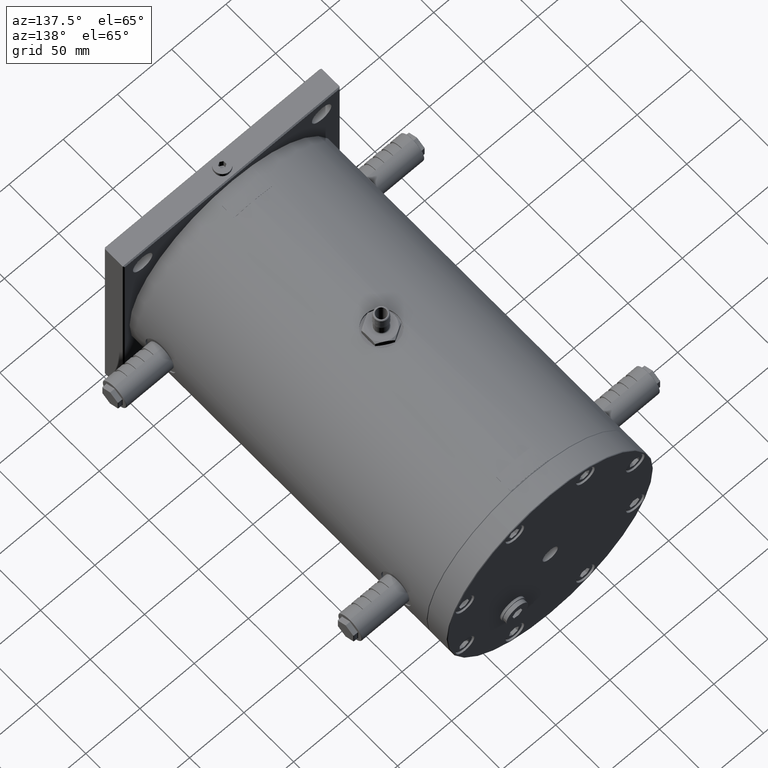
[diagram: clean part render]
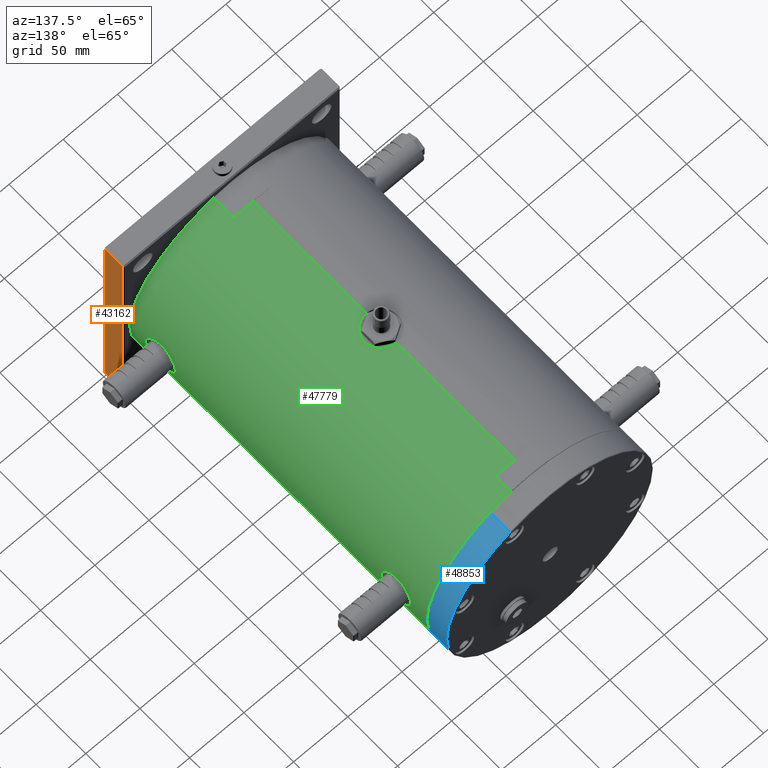
[diagram: same view with three faces highlighted in distinct colors, each labeled with its STEP entity id]
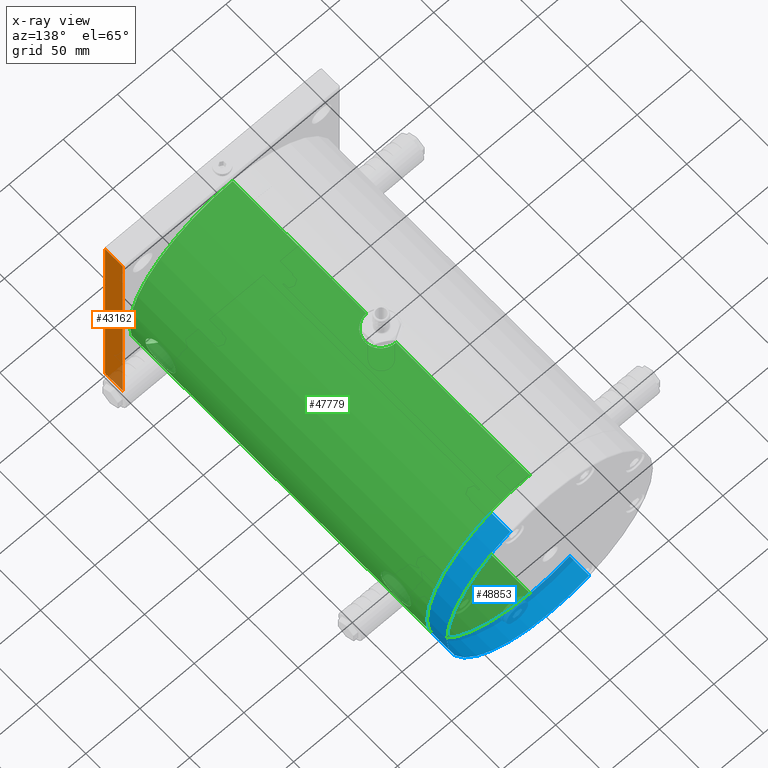
[diagram: x-ray of the same camera — body ghosted, the three highlighted faces saturated]
A machine part, auxiliary view with three faces highlighted in distinct colors.
The next image is the same camera in x-ray (body ghosted, the three faces saturated) — at least one of them is partly hidden behind the body in this view.
Their STEP definitions:

[orange] entity #43162 — the highlighted planar face has unit normal (-1, -0, 0).
#26 = VERTEX_POINT ( 'NONE', #16512 ) ;
#2985 = LINE ( 'NONE', #25961, #27165 ) ;
#4326 = PLANE ( 'NONE',  #44457 ) ;
#5068 = LINE ( 'NONE', #39673, #45873 ) ;
#11075 = CARTESIAN_POINT ( 'NONE',  ( 100.0000000000000000, 19.00000000000000000, 100.0000000000000000 ) ) ;
#11875 = EDGE_LOOP ( 'NONE', ( #25323, #30259, #40073, #50368 ) ) ;
#12211 = CARTESIAN_POINT ( 'NONE',  ( 100.0000000000000000, 1.000000000000000000, 100.0000000000000000 ) ) ;
#16512 = CARTESIAN_POINT ( 'NONE',  ( 100.0000000000000000, 1.000000000000000000, -100.0000000000000000 ) ) ;
#18087 = LINE ( 'NONE', #44502, #34114 ) ;
#21166 = DIRECTION ( 'NONE',  ( 1.491862189340053900E-016, -6.234162491791649300E-017, 1.000000000000000000 ) ) ;
#23513 = CARTESIAN_POINT ( 'NONE',  ( 100.0000000000000000, 20.00000000000000000, 100.0000000000000000 ) ) ;
#25323 = ORIENTED_EDGE ( 'NONE', *, *, #49682, .T. ) ;
#25666 = LINE ( 'NONE', #33217, #26948 ) ;
#25961 = CARTESIAN_POINT ( 'NONE',  ( 100.0000000000000000, 20.00000000000000000, 100.0000000000000000 ) ) ;
#26368 = EDGE_CURVE ( 'NONE', #29666, #26, #5068, .T. ) ;
#26653 = DIRECTION ( 'NONE',  ( 2.300880297921579900E-017, -1.000000000000000000, 0.0000000000000000000 ) ) ;
#26948 = VECTOR ( 'NONE', #49172, 1000.000000000000000 ) ;
#27165 = VECTOR ( 'NONE', #26653, 1000.000000000000000 ) ;
#28270 = CARTESIAN_POINT ( 'NONE',  ( 100.0000000000000000, 19.00000000000000000, -100.0000000000000000 ) ) ;
#29666 = VERTEX_POINT ( 'NONE', #28270 ) ;
#30259 = ORIENTED_EDGE ( 'NONE', *, *, #44140, .T. ) ;
#31590 = DIRECTION ( 'NONE',  ( -1.000000000000000000, -8.946783215029165300E-019, 1.491862189340053900E-016 ) ) ;
#31935 = DIRECTION ( 'NONE',  ( 1.491862189340053900E-016, -6.234162491791649300E-017, 1.000000000000000000 ) ) ;
#33217 = CARTESIAN_POINT ( 'NONE',  ( 100.0000000000000000, 1.000000000000000000, 100.0000000000000000 ) ) ;
#34114 = VECTOR ( 'NONE', #21166, 1000.000000000000000 ) ;
#36364 = VERTEX_POINT ( 'NONE', #11075 ) ;
#38591 = VERTEX_POINT ( 'NONE', #12211 ) ;
#39673 = CARTESIAN_POINT ( 'NONE',  ( 100.0000000000000000, 20.00000000000000000, -100.0000000000000000 ) ) ;
#40073 = ORIENTED_EDGE ( 'NONE', *, *, #26368, .F. ) ;
#42426 = EDGE_CURVE ( 'NONE', #29666, #36364, #18087, .T. ) ;
#43162 = ADVANCED_FACE ( 'NONE', ( #50208 ), #4326, .F. ) ;
#44140 = EDGE_CURVE ( 'NONE', #38591, #26, #25666, .T. ) ;
#44457 = AXIS2_PLACEMENT_3D ( 'NONE', #23513, #31590, #31935 ) ;
#44502 = CARTESIAN_POINT ( 'NONE',  ( 100.0000000000000000, 19.00000000000000000, 100.0000000000000000 ) ) ;
#45873 = VECTOR ( 'NONE', #51114, 1000.000000000000000 ) ;
#49172 = DIRECTION ( 'NONE',  ( -1.491862189340053900E-016, 6.234162491791649300E-017, -1.000000000000000000 ) ) ;
#49682 = EDGE_CURVE ( 'NONE', #36364, #38591, #2985, .T. ) ;
#50208 = FACE_OUTER_BOUND ( 'NONE', #11875, .T. ) ;
#50368 = ORIENTED_EDGE ( 'NONE', *, *, #42426, .T. ) ;
#51114 = DIRECTION ( 'NONE',  ( 2.300880297921579900E-017, -1.000000000000000000, 0.0000000000000000000 ) ) ;

[blue] entity #48853 — the highlighted cylindrical surface (partial cylindrical patch) has radius 95 mm, axis along (0, -1, -0).
#3123 = AXIS2_PLACEMENT_3D ( 'NONE', #10956, #7312, #27211 ) ;
#3277 = CIRCLE ( 'NONE', #43000, 94.99999999999998600 ) ;
#6094 = CIRCLE ( 'NONE', #3123, 94.99999999999998600 ) ;
#7202 = DIRECTION ( 'NONE',  ( -1.955725044488215100E-015, 1.000000000000000000, 2.661534413424140000E-015 ) ) ;
#7312 = DIRECTION ( 'NONE',  ( 1.955725044488215100E-015, -1.000000000000000000, -2.661534413424140000E-015 ) ) ;
#8647 = CARTESIAN_POINT ( 'NONE',  ( 36.35492607475062200, 339.4999999999998300, 87.76855558854499900 ) ) ;
#9865 = AXIS2_PLACEMENT_3D ( 'NONE', #37032, #48981, #28440 ) ;
#10956 = CARTESIAN_POINT ( 'NONE',  ( -7.459025499431389500E-013, 339.5000000000000000, 8.782341766847179800E-013 ) ) ;
#11834 = VERTEX_POINT ( 'NONE', #38336 ) ;
#12149 = VECTOR ( 'NONE', #22024, 1000.000000000000000 ) ;
#14230 = CARTESIAN_POINT ( 'NONE',  ( 36.35492607475058700, 339.9999999999998900, 87.76855558854501300 ) ) ;
#14641 = VERTEX_POINT ( 'NONE', #34073 ) ;
#15453 = DIRECTION ( 'NONE',  ( 1.955725044488215100E-015, -1.000000000000000000, -2.661534413424140000E-015 ) ) ;
#15792 = CARTESIAN_POINT ( 'NONE',  ( -36.35492607475207900, 340.0000000000001700, -87.76855558854326500 ) ) ;
#17261 = ORIENTED_EDGE ( 'NONE', *, *, #45981, .T. ) ;
#17335 = EDGE_LOOP ( 'NONE', ( #50236, #17261, #39234, #22298 ) ) ;
#18597 = DIRECTION ( 'NONE',  ( 0.3826834323658035400, -1.752983723092352800E-015, 0.9238795325109912000 ) ) ;
#22024 = DIRECTION ( 'NONE',  ( 1.955725044488215100E-015, -1.000000000000000000, -2.661534413424140000E-015 ) ) ;
#22298 = ORIENTED_EDGE ( 'NONE', *, *, #49446, .F. ) ;
#24655 = LINE ( 'NONE', #15792, #36398 ) ;
#24730 = EDGE_CURVE ( 'NONE', #14641, #40261, #3277, .T. ) ;
#27211 = DIRECTION ( 'NONE',  ( 0.3826834323658035400, -1.752983723092352800E-015, 0.9238795325109912000 ) ) ;
#27829 = FACE_OUTER_BOUND ( 'NONE', #17335, .T. ) ;
#28440 = DIRECTION ( 'NONE',  ( -0.3826834323658035400, 1.752983723092352800E-015, -0.9238795325109912000 ) ) ;
#30390 = CARTESIAN_POINT ( 'NONE',  ( -36.35492607475206500, 320.0000000000001700, -87.76855558854330800 ) ) ;
#30835 = CARTESIAN_POINT ( 'NONE',  ( -7.077659115756189900E-013, 320.0000000000000000, 8.263342556229470200E-013 ) ) ;
#34060 = VERTEX_POINT ( 'NONE', #8647 ) ;
#34073 = CARTESIAN_POINT ( 'NONE',  ( 36.35492607475061500, 319.9999999999998300, 87.76855558854498400 ) ) ;
#36398 = VECTOR ( 'NONE', #15453, 1000.000000000000000 ) ;
#37032 = CARTESIAN_POINT ( 'NONE',  ( -7.468804124653830000E-013, 340.0000000000000000, 8.795649438914299800E-013 ) ) ;
#38336 = CARTESIAN_POINT ( 'NONE',  ( -36.35492607475205800, 339.5000000000001700, -87.76855558854327900 ) ) ;
#39234 = ORIENTED_EDGE ( 'NONE', *, *, #24730, .T. ) ;
#40261 = VERTEX_POINT ( 'NONE', #30390 ) ;
#41176 = LINE ( 'NONE', #14230, #12149 ) ;
#43000 = AXIS2_PLACEMENT_3D ( 'NONE', #30835, #7202, #18597 ) ;
#44770 = EDGE_CURVE ( 'NONE', #11834, #34060, #6094, .T. ) ;
#45981 = EDGE_CURVE ( 'NONE', #34060, #14641, #41176, .T. ) ;
#47597 = CYLINDRICAL_SURFACE ( 'NONE', #9865, 94.99999999999998600 ) ;
#48853 = ADVANCED_FACE ( 'NONE', ( #27829 ), #47597, .T. ) ;
#48981 = DIRECTION ( 'NONE',  ( 1.955725044488215100E-015, -1.000000000000000000, -2.661534413424140000E-015 ) ) ;
#49446 = EDGE_CURVE ( 'NONE', #11834, #40261, #24655, .T. ) ;
#50236 = ORIENTED_EDGE ( 'NONE', *, *, #44770, .T. ) ;

[green] entity #47779 — the highlighted cylindrical surface (partial cylindrical patch) has radius 95 mm, axis along (0, -1, 0).
#509 = CARTESIAN_POINT ( 'NONE',  ( 94.01169574294213800, 45.30289921502257000, 13.66884056311762100 ) ) ;
#1043 = EDGE_CURVE ( 'NONE', #13489, #9054, #40050, .T. ) ;
#1736 = CARTESIAN_POINT ( 'NONE',  ( 0.0000000000000000000, 319.5000000000000000, 0.0000000000000000000 ) ) ;
#1748 = VERTEX_POINT ( 'NONE', #45569 ) ;
#2100 = CARTESIAN_POINT ( 'NONE',  ( 93.93124831220708900, 283.6728524474844400, -14.21061395753144500 ) ) ;
#2456 = CARTESIAN_POINT ( 'NONE',  ( 94.21376205251530700, 279.7594274543406500, -12.20009916580405500 ) ) ;
#2556 = CARTESIAN_POINT ( 'NONE',  ( 93.80831519646857000, 52.47952891109894600, 14.99999999999996600 ) ) ;
#2725 = FACE_OUTER_BOUND ( 'NONE', #51117, .T. ) ;
#2771 = CARTESIAN_POINT ( 'NONE',  ( 14.90237131168876600, 168.0309195021228300, 93.82407341456206500 ) ) ;
#2860 = CARTESIAN_POINT ( 'NONE',  ( 94.32759826050448700, 298.4079888304420400, 11.30431237425611500 ) ) ;
#2899 = CARTESIAN_POINT ( 'NONE',  ( 93.88775553143170800, 55.38981930322481200, 14.49517789102654700 ) ) ;
#2900 = CARTESIAN_POINT ( 'NONE',  ( 94.36748313137685800, 41.23649170612783600, -10.94983873391603300 ) ) ;
#2964 = CARTESIAN_POINT ( 'NONE',  ( 95.00002888294113700, 273.4998170746932300, 0.4844051046419959300 ) ) ;
#3196 = CARTESIAN_POINT ( 'NONE',  ( 93.88853434243830500, 292.4086399488543900, -14.49014124802632300 ) ) ;
#3239 = CARTESIAN_POINT ( 'NONE',  ( 94.59881055778811300, 63.70687035996874700, -8.731133722901361700 ) ) ;
#3370 = CARTESIAN_POINT ( 'NONE',  ( 94.44560342858160600, 299.4585341279672500, -10.25420786198594800 ) ) ;
#3408 = CARTESIAN_POINT ( 'NONE',  ( 94.04291593617848800, 58.15246988096735900, -13.45304885120810900 ) ) ;
#3449 = CARTESIAN_POINT ( 'NONE',  ( 95.00002888294116600, 36.49981707469339700, 0.4844051046419872700 ) ) ;
#3550 = CARTESIAN_POINT ( 'NONE',  ( 93.80831519646859800, 289.4795289110990100, 15.00000000000000000 ) ) ;
#3583 = CARTESIAN_POINT ( 'NONE',  ( 94.77159016678152200, 64.98304233937551500, -6.646186053362740200 ) ) ;
#3613 = B_SPLINE_CURVE_WITH_KNOTS ( 'NONE', 3,
 ( #22073, #2556, #10515, #26588, #2899, #33635, #9997, #37616, #13940, #17939, #11038, #26764, #19291, #35197, #38824, #27121, #15490, #6864, #30511, #18789, #19483, #7047, #46950, #46433, #23282, #50936, #50591, #34827, #38990, #42776, #38650, #31206, #27283, #3583, #14795, #3239, #7556, #18966, #34659, #7224, #11366, #30864, #22927, #3408, #22758, #15146, #14967, #43142, #11199, #42624, #26946, #11539 ),
 .UNSPECIFIED., .F., .F.,
 ( 4, 2, 2, 2, 2, 2, 2, 2, 2, 2, 2, 2, 2, 2, 2, 2, 2, 2, 2, 2, 2, 2, 2, 2, 2, 4 ),
 ( 0.04697029817418248200, 0.04990521492440493800, 0.05137267329951615600, 0.05284013167462737300, 0.05430759004973859100, 0.05577504842484980900, 0.05870996517507223700, 0.06017742355018344800, 0.06164488192529465200, 0.06457979867551705300, 0.06604725705062826400, 0.06751471542573946000, 0.06898217380085067100, 0.07044963217596186800, 0.07338454892618427600, 0.07485200730129547300, 0.07631946567640668400, 0.07925438242662907800, 0.08072184080174028800, 0.08218929917685149900, 0.08512421592707392100, 0.08659167430218511800, 0.08805913267729631500, 0.08952659105240751100, 0.09099404942751870800, 0.09392896617774114400 ),
 .UNSPECIFIED. ) ;
#3866 = CIRCLE ( 'NONE', #40879, 95.00000000000000000 ) ;
#3873 = CIRCLE ( 'NONE', #19807, 95.00000000000000000 ) ;
#3887 = B_SPLINE_CURVE_WITH_KNOTS ( 'NONE', 3,
 ( #33802, #18113, #10516, #34324, #10685, #41939, #18450, #46098, #22408, #22588, #9998, #14631, #2900, #13941, #17940, #5276, #41431, #49279, #25408, #30213, #14827, #35044, #42809, #19161, #35235, #3449, #15521, #31054, #38689, #22794, #15348, #42487, #46818, #46466, #48011, #27470, #31400, #27805, #7783, #8128, #43691, #8303, #39880, #16220, #509, #28150, #12911, #44200, #4644, #4973, #44372, #36922 ),
 .UNSPECIFIED., .F., .F.,
 ( 4, 2, 2, 2, 2, 2, 2, 2, 2, 2, 2, 2, 2, 2, 2, 2, 2, 2, 2, 2, 2, 2, 2, 2, 2, 4 ),
 ( 0.0000000000000000000, 0.002935643635886420300, 0.004403465453829628900, 0.005871287271772838800, 0.008806930907659240400, 0.01027475272560244100, 0.01174257454354564100, 0.01467821817943206500, 0.01614603999737527400, 0.01761386181531847700, 0.01908168363326168500, 0.02054950545120489200, 0.02348514908709130000, 0.02495297090503450000, 0.02642079272297770700, 0.02935643635886411500, 0.03082425817680731200, 0.03229207999475051200, 0.03375990181269371300, 0.03522772363063690600, 0.03816336726652330000, 0.03963118908446650000, 0.04109901090240970100, 0.04403465453829610200, 0.04550247635623929500, 0.04697029817418248200 ),
 .UNSPECIFIED. ) ;
#4329 = VERTEX_POINT ( 'NONE', #43769 ) ;
#4644 = CARTESIAN_POINT ( 'NONE',  ( 93.82761814880944900, 49.53421362597101300, 14.87886065367530500 ) ) ;
#4813 = VECTOR ( 'NONE', #12635, 1000.000000000000000 ) ;
#4837 = B_SPLINE_CURVE_WITH_KNOTS ( 'NONE', 3,
 ( #9769, #13691, #41356, #45343, #25120, #49340, #5953, #29440, #5771, #9260, #44829, #25640, #33552, #9929, #13194, #40998, #45000, #37542, #29107, #41527, #40838, #21503, #17200, #45519, #13873, #21156 ),
 .UNSPECIFIED., .F., .F.,
 ( 4, 2, 2, 2, 2, 2, 2, 2, 2, 2, 2, 2, 4 ),
 ( 0.07045895232035724600, 0.07339270405253024700, 0.07485957991861676200, 0.07632645578470326200, 0.07926020751687629100, 0.08072708338296280500, 0.08219395924904930600, 0.08512771098122227900, 0.08659458684730876600, 0.08806146271339525300, 0.08952833857948173900, 0.09099521444556822600, 0.09392896617774111600 ),
 .UNSPECIFIED. ) ;
#4973 = CARTESIAN_POINT ( 'NONE',  ( 93.81215264043336800, 50.51899458641033600, 14.97606219265641800 ) ) ;
#5201 = FACE_BOUND ( 'NONE', #29127, .T. ) ;
#5276 = CARTESIAN_POINT ( 'NONE',  ( 94.66937268861477200, 38.75778764119900900, -7.929638499274860300 ) ) ;
#5477 = CARTESIAN_POINT ( 'NONE',  ( 0.0000000000000000000, 20.50000000000000000, 0.0000000000000000000 ) ) ;
#5771 = CARTESIAN_POINT ( 'NONE',  ( 7.512849332740490400, 183.0199048040399000, 94.70600239149811700 ) ) ;
#5871 = DIRECTION ( 'NONE',  ( 0.0000000000000000000, 0.0000000000000000000, 1.000000000000000000 ) ) ;
#5909 = DIRECTION ( 'NONE',  ( 0.0000000000000000000, -1.000000000000000000, 0.0000000000000000000 ) ) ;
#5953 = CARTESIAN_POINT ( 'NONE',  ( 5.292104109825895200, 184.0440191453382100, 94.85357080435817100 ) ) ;
#6414 = CARTESIAN_POINT ( 'NONE',  ( 93.80831519646859800, 287.5072397086079800, -15.00000000000000400 ) ) ;
#6583 = CARTESIAN_POINT ( 'NONE',  ( 93.82406587339127700, 286.5313868584210000, -14.90241759614651900 ) ) ;
#6725 = CARTESIAN_POINT ( 'NONE',  ( 4.830869146935569300, 155.7907033897630800, 94.87825975397724700 ) ) ;
#6821 = CARTESIAN_POINT ( 'NONE',  ( 93.86962066749536900, 291.9263862499502700, -14.61177383230986500 ) ) ;
#6864 = CARTESIAN_POINT ( 'NONE',  ( 94.70494762989048400, 64.51221456983678600, 7.525902816628515300 ) ) ;
#6903 = CARTESIAN_POINT ( 'NONE',  ( 13.47684159604682100, 163.3410563925994000, 94.03999113813695500 ) ) ;
#6935 = CARTESIAN_POINT ( 'NONE',  ( 94.32755499132011300, 278.5919397803754700, 11.30516479866415700 ) ) ;
#7009 = CARTESIAN_POINT ( 'NONE',  ( 94.56001500819820600, 300.4035073954917200, 9.140623075693014200 ) ) ;
#7047 = CARTESIAN_POINT ( 'NONE',  ( 94.92138313664015900, 65.99444700877323600, 3.892698021094383300 ) ) ;
#7190 = CARTESIAN_POINT ( 'NONE',  ( 93.80831519646862700, 289.4925144770790600, -15.00000000000000500 ) ) ;
#7207 = VERTEX_POINT ( 'NONE', #25809 ) ;
#7224 = CARTESIAN_POINT ( 'NONE',  ( 94.32927271752036800, 61.42378679718522200, -11.29032559524117500 ) ) ;
#7284 = CARTESIAN_POINT ( 'NONE',  ( 94.48438925652162400, 277.2130741738603200, 9.891652883289189900 ) ) ;
#7349 = CARTESIAN_POINT ( 'NONE',  ( 94.14281545135511900, 296.4395587722386300, -12.73605687314769200 ) ) ;
#7455 = CARTESIAN_POINT ( 'NONE',  ( 94.99626690024329900, 273.5235845621766700, 0.9758713956846152300 ) ) ;
#7513 = CARTESIAN_POINT ( 'NONE',  ( 94.10670830719668300, 296.0006045169263300, 12.99930900640184100 ) ) ;
#7555 = LINE ( 'NONE', #21069, #48960 ) ;
#7556 = CARTESIAN_POINT ( 'NONE',  ( 94.56107564678468700, 63.41188797849943600, -9.129595024509134400 ) ) ;
#7783 = CARTESIAN_POINT ( 'NONE',  ( 94.44530702829615600, 40.54388178514302200, 10.25707442559737700 ) ) ;
#8128 = CARTESIAN_POINT ( 'NONE',  ( 94.32755499132014200, 41.59193978037552600, 11.30516479866414400 ) ) ;
#8303 = CARTESIAN_POINT ( 'NONE',  ( 94.14241316116158500, 43.56543316555349300, 12.73895744354714500 ) ) ;
#8451 = EDGE_CURVE ( 'NONE', #1748, #36960, #3887, .T. ) ;
#8540 = EDGE_CURVE ( 'NONE', #26540, #4329, #3866, .T. ) ;
#9054 = VERTEX_POINT ( 'NONE', #44658 ) ;
#9122 = B_SPLINE_CURVE_WITH_KNOTS ( 'NONE', 3,
 ( #10413, #6414, #6583, #38019, #25788, #2100, #22303, #49801, #10578, #2456, #38194, #10752, #18681, #33868, #21794, #49965, #49461, #29729, #33702, #21969, #10243, #14171, #41836, #15554, #39233, #2964, #7455, #23342, #42678, #30752, #34898, #30578, #22652, #11263, #22995, #35084, #26650, #7284, #35266, #6935, #23170, #34553, #38891, #50655, #27340, #19360, #31262, #15033, #39050, #11599, #43207, #19027 ),
 .UNSPECIFIED., .F., .F.,
 ( 4, 2, 2, 2, 2, 2, 2, 2, 2, 2, 2, 2, 2, 2, 2, 2, 2, 2, 2, 2, 2, 2, 2, 2, 2, 4 ),
 ( 0.0000000000000000000, 0.002935643635886357800, 0.004403465453829537800, 0.005871287271772718300, 0.008806930907659079100, 0.01027475272560225900, 0.01174257454354544000, 0.01467821817943180100, 0.01614603999737502700, 0.01761386181531825500, 0.01908168363326148700, 0.02054950545120471500, 0.02348514908709114000, 0.02495297090503434700, 0.02642079272297755800, 0.02935643635886395200, 0.03082425817680711400, 0.03229207999475027700, 0.03375990181269343500, 0.03522772363063660100, 0.03816336726652303600, 0.03963118908446625800, 0.04109901090240947900, 0.04403465453829592100, 0.04550247635623922600, 0.04697029817418253000 ),
 .UNSPECIFIED. ) ;
#9260 = CARTESIAN_POINT ( 'NONE',  ( 8.735737327896970300, 182.2035691454864500, 94.59838445690665800 ) ) ;
#9769 = CARTESIAN_POINT ( 'NONE',  ( 1.163414457908255300E-014, 185.0000000000000300, 95.00000000000000000 ) ) ;
#9929 = CARTESIAN_POINT ( 'NONE',  ( 11.29311847804811100, 179.9205690611584000, 94.32893473069285100 ) ) ;
#9997 = CARTESIAN_POINT ( 'NONE',  ( 93.95624073416571800, 56.78943491385681600, 14.04494733203603500 ) ) ;
#9998 = CARTESIAN_POINT ( 'NONE',  ( 94.25157263838188700, 42.36201207429997600, -11.90548420598179600 ) ) ;
#10243 = CARTESIAN_POINT ( 'NONE',  ( 94.87804411974559600, 274.2921422603482100, -4.835085709195988500 ) ) ;
#10389 = CARTESIAN_POINT ( 'NONE',  ( 5.291484044952593300, 155.9558251184243400, 94.85359568597323200 ) ) ;
#10413 = CARTESIAN_POINT ( 'NONE',  ( 93.80831519646859800, 288.5000000000000000, -15.00000000000000000 ) ) ;
#10515 = CARTESIAN_POINT ( 'NONE',  ( 93.82366184677013600, 53.45415914592869200, 14.90498301702929000 ) ) ;
#10516 = CARTESIAN_POINT ( 'NONE',  ( 93.82406587339127700, 49.53138685842099400, -14.90241759614655600 ) ) ;
#10578 = CARTESIAN_POINT ( 'NONE',  ( 94.10562595176298800, 280.9815274739498800, -13.01663102344745000 ) ) ;
#10685 = CARTESIAN_POINT ( 'NONE',  ( 93.88750099282266600, 47.61608616450845900, -14.49683123521211700 ) ) ;
#10725 = CARTESIAN_POINT ( 'NONE',  ( 1.954979101532151200, 155.0951756491896300, 94.98482829650237100 ) ) ;
#10752 = CARTESIAN_POINT ( 'NONE',  ( 94.32855466410670400, 278.5994897332793700, -11.27932949991627600 ) ) ;
#10827 = CARTESIAN_POINT ( 'NONE',  ( 94.32927271752036800, 298.4237867971853000, -11.29032559524112500 ) ) ;
#10910 = CARTESIAN_POINT ( 'NONE',  ( 10.94799757452910800, 159.7345224378019000, 94.36769728122575900 ) ) ;
#10994 = CARTESIAN_POINT ( 'NONE',  ( 94.85298871533645100, 302.5400983529164000, 5.302611873577141900 ) ) ;
#11038 = CARTESIAN_POINT ( 'NONE',  ( 94.14173571553070000, 59.42668987394013400, 12.74400509587701100 ) ) ;
#11199 = CARTESIAN_POINT ( 'NONE',  ( 93.86962066749536900, 54.92638624995029800, -14.61177383230989200 ) ) ;
#11263 = CARTESIAN_POINT ( 'NONE',  ( 94.70357379851969900, 275.5069365642212900, 7.511470866005177900 ) ) ;
#11323 = CARTESIAN_POINT ( 'NONE',  ( 94.98469697190215300, 303.4039594589446000, -1.956974520176091700 ) ) ;
#11366 = CARTESIAN_POINT ( 'NONE',  ( 94.25190144166802500, 60.66997791325511000, -11.91161020878176100 ) ) ;
#11539 = CARTESIAN_POINT ( 'NONE',  ( 93.80831519646859800, 51.50000000000000000, -15.00000000000000000 ) ) ;
#11599 = CARTESIAN_POINT ( 'NONE',  ( 93.81215264043335400, 287.5189945864100900, 14.97606219265643500 ) ) ;
#11940 = DIRECTION ( 'NONE',  ( 0.0000000000000000000, -1.000000000000000000, 0.0000000000000000000 ) ) ;
#12635 = DIRECTION ( 'NONE',  ( 0.0000000000000000000, -1.000000000000000000, 0.0000000000000000000 ) ) ;
#12911 = CARTESIAN_POINT ( 'NONE',  ( 93.88444751668328100, 47.59928355540248600, 14.51717612677281400 ) ) ;
#13194 = CARTESIAN_POINT ( 'NONE',  ( 11.91396397925626300, 179.1668813660500600, 94.25160163371614900 ) ) ;
#13489 = VERTEX_POINT ( 'NONE', #41263 ) ;
#13691 = CARTESIAN_POINT ( 'NONE',  ( 0.9906646551524677100, 185.0000000000000000, 95.00000000000000000 ) ) ;
#13873 = CARTESIAN_POINT ( 'NONE',  ( 14.99999999999999600, 170.9921204974950500, 93.80831519646859800 ) ) ;
#13940 = CARTESIAN_POINT ( 'NONE',  ( 94.04163289701433800, 58.13439806164424100, 13.46201564116260500 ) ) ;
#13941 = CARTESIAN_POINT ( 'NONE',  ( 94.48389310920482800, 40.20057625972086900, -9.913491127055921800 ) ) ;
#14171 = CARTESIAN_POINT ( 'NONE',  ( 94.92127614422634000, 274.0062554731269400, -3.895207947618801700 ) ) ;
#14494 = CARTESIAN_POINT ( 'NONE',  ( 3.890647883470890600, 155.5050261842476400, 94.92146400948962500 ) ) ;
#14590 = CARTESIAN_POINT ( 'NONE',  ( 94.99600449145587800, 303.4747512497082200, 0.9987172192352307100 ) ) ;
#14631 = CARTESIAN_POINT ( 'NONE',  ( 94.32855466410671900, 41.59948973327945500, -11.27932949991632200 ) ) ;
#14755 = CARTESIAN_POINT ( 'NONE',  ( 94.44409707085993900, 299.4455737080005000, 10.26807413454237800 ) ) ;
#14795 = CARTESIAN_POINT ( 'NONE',  ( 94.70643203664795400, 64.52302458184789200, -7.507486332299278000 ) ) ;
#14827 = CARTESIAN_POINT ( 'NONE',  ( 94.87804411974556700, 37.29214226034822100, -4.835085709196011500 ) ) ;
#14948 = CARTESIAN_POINT ( 'NONE',  ( 93.80831519646859800, 51.50000000000000000, 14.99999999999997000 ) ) ;
#14967 = CARTESIAN_POINT ( 'NONE',  ( 93.93238071392805500, 56.34899287119338900, -14.20313091443753700 ) ) ;
#15033 = CARTESIAN_POINT ( 'NONE',  ( 93.83923934543651100, 286.0435051908884200, 14.80562835958110300 ) ) ;
#15108 = CARTESIAN_POINT ( 'NONE',  ( 93.93135529095216900, 293.3290332652563300, 14.20990197106558900 ) ) ;
#15146 = CARTESIAN_POINT ( 'NONE',  ( 93.95736961739332600, 56.80940910178094300, -14.03740082913925700 ) ) ;
#15274 = CARTESIAN_POINT ( 'NONE',  ( 94.85394977208909500, 302.5465767844784200, -5.285332116630003800 ) ) ;
#15348 = CARTESIAN_POINT ( 'NONE',  ( 94.88145395093216900, 37.26521710600039900, 4.831052160519844200 ) ) ;
#15410 = CARTESIAN_POINT ( 'NONE',  ( 1.163414459189985600E-014, 320.0000000000000000, 95.00000000000000000 ) ) ;
#15490 = CARTESIAN_POINT ( 'NONE',  ( 94.59746841088085000, 63.69646200155580800, 8.745601748811072400 ) ) ;
#15521 = CARTESIAN_POINT ( 'NONE',  ( 94.99626690024331300, 36.52358456217673700, 0.9758713956846140100 ) ) ;
#15554 = CARTESIAN_POINT ( 'NONE',  ( 94.98472019448510700, 273.5958609938267000, -1.960100645772335100 ) ) ;
#16047 = ORIENTED_EDGE ( 'NONE', *, *, #8540, .T. ) ;
#16220 = CARTESIAN_POINT ( 'NONE',  ( 94.04246882412427100, 44.85369107009911000, 13.45619493078521800 ) ) ;
#16242 = ORIENTED_EDGE ( 'NONE', *, *, #33707, .T. ) ;
#17094 = EDGE_CURVE ( 'NONE', #36960, #1748, #3613, .T. ) ;
#17158 = ORIENTED_EDGE ( 'NONE', *, *, #8451, .T. ) ;
#17200 = CARTESIAN_POINT ( 'NONE',  ( 14.61208158033089400, 173.4250448928446200, 93.86957268144226400 ) ) ;
#17473 = CARTESIAN_POINT ( 'NONE',  ( 0.0000000000000000000, 319.5000000000000000, -95.00000000000000000 ) ) ;
#17598 = VERTEX_POINT ( 'NONE', #31869 ) ;
#17939 = CARTESIAN_POINT ( 'NONE',  ( 94.10670830719666900, 59.00060451692635900, 12.99930900640179700 ) ) ;
#17940 = CARTESIAN_POINT ( 'NONE',  ( 94.56101595071071100, 39.58022064825345200, -9.159226512622465700 ) ) ;
#18113 = CARTESIAN_POINT ( 'NONE',  ( 93.80831519646859800, 50.50723970860799700, -15.00000000000000700 ) ) ;
#18450 = CARTESIAN_POINT ( 'NONE',  ( 93.95657218600887000, 46.20445671524972700, -14.04274931221661900 ) ) ;
#18490 = CARTESIAN_POINT ( 'NONE',  ( 14.49659174897875100, 166.1151768623563800, 93.88753807813958500 ) ) ;
#18590 = CARTESIAN_POINT ( 'NONE',  ( 94.10793441593574500, 296.0158923470280000, -12.99042882810465800 ) ) ;
#18681 = CARTESIAN_POINT ( 'NONE',  ( 94.36748313137687200, 278.2364917061278200, -10.94983873391598000 ) ) ;
#18747 = CARTESIAN_POINT ( 'NONE',  ( 93.80831519646859800, 288.5000000000000000, -15.00000000000000000 ) ) ;
#18789 = CARTESIAN_POINT ( 'NONE',  ( 94.85298871533642300, 65.54009835291640200, 5.302611873577064600 ) ) ;
#18828 = CARTESIAN_POINT ( 'NONE',  ( 15.00000000000001200, 170.0000000000000000, 93.80831519646859800 ) ) ;
#18966 = CARTESIAN_POINT ( 'NONE',  ( 94.48443208369985800, 62.78733599724390000, -9.891340991452237200 ) ) ;
#19027 = CARTESIAN_POINT ( 'NONE',  ( 93.80831519646859800, 288.5000000000000000, 15.00000000000000000 ) ) ;
#19090 = CARTESIAN_POINT ( 'NONE',  ( 94.14173571553070000, 296.4266898739400100, 12.74400509587705900 ) ) ;
#19161 = CARTESIAN_POINT ( 'NONE',  ( 94.98472019448507800, 36.59586099382673300, -1.960100645772374600 ) ) ;
#19254 = CARTESIAN_POINT ( 'NONE',  ( 93.95736961739328300, 293.8094091017808300, -14.03740082913921200 ) ) ;
#19291 = CARTESIAN_POINT ( 'NONE',  ( 94.32759826050450200, 61.40798883044214300, 11.30431237425605700 ) ) ;
#19360 = CARTESIAN_POINT ( 'NONE',  ( 93.92850961411886600, 283.6641541554553200, 14.23304735059193100 ) ) ;
#19483 = CARTESIAN_POINT ( 'NONE',  ( 94.87809334032292000, 65.70818825228349200, 4.834198854126766400 ) ) ;
#19696 = B_SPLINE_CURVE_WITH_KNOTS ( 'NONE', 3,
 ( #18828, #22280, #2771, #22796, #18490, #38169, #30550, #6903, #46643, #49942, #34017, #34534, #10910, #26276, #26449, #46146, #42312, #22968, #38496, #10389, #6725, #14494, #50630, #10725, #42489, #38692 ),
 .UNSPECIFIED., .F., .F.,
 ( 4, 2, 2, 2, 2, 2, 2, 2, 2, 2, 2, 2, 4 ),
 ( 0.0000000000000000000, 0.002936346493901566200, 0.004404519740852309200, 0.005872692987803051700, 0.008809039481704535000, 0.01027721272865530900, 0.01174538597560608300, 0.01468173246950757100, 0.01614990571645830800, 0.01761807896340904900, 0.01908625221035978700, 0.02055442545731052700, 0.02349077195121200900 ),
 .UNSPECIFIED. ) ;
#19807 = AXIS2_PLACEMENT_3D ( 'NONE', #1736, #29369, #5871 ) ;
#21069 = CARTESIAN_POINT ( 'NONE',  ( 0.0000000000000000000, 320.0000000000000000, -95.00000000000000000 ) ) ;
#21156 = CARTESIAN_POINT ( 'NONE',  ( 15.00000000000001200, 170.0000000000000000, 93.80831519646859800 ) ) ;
#21503 = CARTESIAN_POINT ( 'NONE',  ( 14.49054382434864300, 173.9071235170131300, 93.88847203874563300 ) ) ;
#21794 = CARTESIAN_POINT ( 'NONE',  ( 94.56101595071075400, 276.5802206482534300, -9.159226512622456800 ) ) ;
#21969 = CARTESIAN_POINT ( 'NONE',  ( 94.85336888167155700, 274.4573559571378500, -5.295534377820252400 ) ) ;
#22073 = CARTESIAN_POINT ( 'NONE',  ( 93.80831519646859800, 51.50000000000000000, 14.99999999999997000 ) ) ;
#22280 = CARTESIAN_POINT ( 'NONE',  ( 15.00000000000000200, 169.0070020198370500, 93.80831519646862700 ) ) ;
#22303 = CARTESIAN_POINT ( 'NONE',  ( 93.95657218600889800, 283.2044567152497100, -14.04274931221658200 ) ) ;
#22408 = CARTESIAN_POINT ( 'NONE',  ( 94.10562595176297400, 43.98152747394988900, -13.01663102344746800 ) ) ;
#22541 = CARTESIAN_POINT ( 'NONE',  ( 94.04163289701432400, 295.1343980616442800, 13.46201564116264200 ) ) ;
#22588 = CARTESIAN_POINT ( 'NONE',  ( 94.21376205251532100, 42.75942745434066000, -12.20009916580407200 ) ) ;
#22652 = CARTESIAN_POINT ( 'NONE',  ( 94.76836789776874100, 275.0427951921153600, 6.644210319944813900 ) ) ;
#22758 = CARTESIAN_POINT ( 'NONE',  ( 94.01263658803458200, 57.71114786689787500, -13.66236030938737900 ) ) ;
#22794 = CARTESIAN_POINT ( 'NONE',  ( 94.92499479177217800, 36.98137147346716300, 3.895217003598317800 ) ) ;
#22796 = CARTESIAN_POINT ( 'NONE',  ( 14.61569699090564500, 166.5910575467349600, 93.86900850213119400 ) ) ;
#22891 = CARTESIAN_POINT ( 'NONE',  ( 93.86896980229734300, 291.9085621091962300, 14.61595082518200400 ) ) ;
#22927 = CARTESIAN_POINT ( 'NONE',  ( 94.10793441593580200, 59.01589234702815600, -12.99042882810469000 ) ) ;
#22968 = CARTESIAN_POINT ( 'NONE',  ( 6.636065668325585400, 156.5388272176130300, 94.76893371613205400 ) ) ;
#22995 = CARTESIAN_POINT ( 'NONE',  ( 94.66923715962271000, 275.7588534512033200, 7.931049060340573200 ) ) ;
#23063 = CARTESIAN_POINT ( 'NONE',  ( 94.96938971692996700, 303.3051995664667400, 2.458678884394590400 ) ) ;
#23121 = VERTEX_POINT ( 'NONE', #34878 ) ;
#23170 = CARTESIAN_POINT ( 'NONE',  ( 94.25022968977728500, 279.3479850989198200, 11.92451984968889200 ) ) ;
#23282 = CARTESIAN_POINT ( 'NONE',  ( 94.98072416737429100, 66.37750883074096500, 1.974928369805020400 ) ) ;
#23342 = CARTESIAN_POINT ( 'NONE',  ( 94.98102213261317700, 273.6205894021312000, 1.961755491190456200 ) ) ;
#24418 = EDGE_LOOP ( 'NONE', ( #17158, #24653 ) ) ;
#24653 = ORIENTED_EDGE ( 'NONE', *, *, #17094, .T. ) ;
#25120 = CARTESIAN_POINT ( 'NONE',  ( 3.880598540992222600, 184.4977304190296900, 94.92188459942215700 ) ) ;
#25170 = DIRECTION ( 'NONE',  ( 0.0000000000000000000, 1.000000000000000000, 0.0000000000000000000 ) ) ;
#25408 = CARTESIAN_POINT ( 'NONE',  ( 94.79868897080812900, 37.83158040971498800, -6.197809448919992200 ) ) ;
#25463 = ORIENTED_EDGE ( 'NONE', *, *, #33222, .F. ) ;
#25640 = CARTESIAN_POINT ( 'NONE',  ( 9.895142261007553200, 181.2839941219705200, 94.48403292746913000 ) ) ;
#25788 = CARTESIAN_POINT ( 'NONE',  ( 93.88750099282265200, 284.6160861645083200, -14.49683123521207900 ) ) ;
#25809 = CARTESIAN_POINT ( 'NONE',  ( 93.80831519646859800, 288.5000000000000000, 15.00000000000000000 ) ) ;
#25999 = ORIENTED_EDGE ( 'NONE', *, *, #30568, .T. ) ;
#26276 = CARTESIAN_POINT ( 'NONE',  ( 9.911217928635345200, 158.6985628764014700, 94.48413371240133100 ) ) ;
#26449 = CARTESIAN_POINT ( 'NONE',  ( 9.156636916610636900, 158.0782088281921200, 94.56126982323304700 ) ) ;
#26540 = VERTEX_POINT ( 'NONE', #49004 ) ;
#26545 = CARTESIAN_POINT ( 'NONE',  ( 94.92138313664015900, 302.9944470087731400, 3.892698021094414900 ) ) ;
#26588 = CARTESIAN_POINT ( 'NONE',  ( 93.86896980229735700, 54.90856210919630300, 14.61595082518197400 ) ) ;
#26650 = CARTESIAN_POINT ( 'NONE',  ( 94.56055086746121700, 276.5923276084449200, 9.134923622212722800 ) ) ;
#26764 = CARTESIAN_POINT ( 'NONE',  ( 94.25035064254275600, 60.65383152245215100, 11.92374443805386800 ) ) ;
#26901 = CARTESIAN_POINT ( 'NONE',  ( 94.04291593617846000, 295.1524698809672600, -13.45304885120807700 ) ) ;
#26946 = CARTESIAN_POINT ( 'NONE',  ( 93.80831519646859800, 52.49251447707899800, -14.99999999999999800 ) ) ;
#27079 = CARTESIAN_POINT ( 'NONE',  ( 94.92219359538482600, 302.9997515216273300, -3.873060585707311700 ) ) ;
#27121 = CARTESIAN_POINT ( 'NONE',  ( 94.56001500819820600, 63.40350739549173700, 9.140623075692932500 ) ) ;
#27253 = CARTESIAN_POINT ( 'NONE',  ( 94.77159016678152200, 301.9830423393755200, -6.646186053362677100 ) ) ;
#27283 = CARTESIAN_POINT ( 'NONE',  ( 94.85394977208910900, 65.54657678447833300, -5.285332116630080200 ) ) ;
#27306 = CARTESIAN_POINT ( 'NONE',  ( 15.00000000000001200, 170.0000000000000000, 93.80831519646859800 ) ) ;
#27323 = EDGE_CURVE ( 'NONE', #9054, #33915, #4837, .T. ) ;
#27340 = CARTESIAN_POINT ( 'NONE',  ( 94.01169574294216600, 282.3028992150225900, 13.66884056311764800 ) ) ;
#27470 = CARTESIAN_POINT ( 'NONE',  ( 94.59772656906939400, 39.30154833475064200, 8.742775963389128400 ) ) ;
#27503 = ORIENTED_EDGE ( 'NONE', *, *, #27323, .T. ) ;
#27805 = CARTESIAN_POINT ( 'NONE',  ( 94.48438925652168100, 40.21307417386038500, 9.891652883289157900 ) ) ;
#28150 = CARTESIAN_POINT ( 'NONE',  ( 93.92850961411885200, 46.66415415545521500, 14.23304735059190800 ) ) ;
#29012 = DIRECTION ( 'NONE',  ( 0.0000000000000000000, -1.000000000000000000, 0.0000000000000000000 ) ) ;
#29039 = VERTEX_POINT ( 'NONE', #17473 ) ;
#29107 = CARTESIAN_POINT ( 'NONE',  ( 13.66339715886460800, 176.2088515246092600, 94.01248560996758400 ) ) ;
#29127 = EDGE_LOOP ( 'NONE', ( #47661, #16242 ) ) ;
#29154 = EDGE_CURVE ( 'NONE', #33915, #17598, #19696, .T. ) ;
#29369 = DIRECTION ( 'NONE',  ( -0.0000000000000000000, -1.000000000000000000, -0.0000000000000000000 ) ) ;
#29376 = AXIS2_PLACEMENT_3D ( 'NONE', #35640, #11940, #39255 ) ;
#29440 = CARTESIAN_POINT ( 'NONE',  ( 6.652086621696573900, 183.4801002308175800, 94.77117064046395000 ) ) ;
#29729 = CARTESIAN_POINT ( 'NONE',  ( 94.76868297108693200, 275.0405915684193000, -6.639635603231840700 ) ) ;
#30213 = CARTESIAN_POINT ( 'NONE',  ( 94.85336888167158500, 37.45735595713782800, -5.295534377820301200 ) ) ;
#30465 = CARTESIAN_POINT ( 'NONE',  ( 93.93238071392801200, 293.3489928711933300, -14.20313091443750200 ) ) ;
#30511 = CARTESIAN_POINT ( 'NONE',  ( 94.77024364893900100, 64.97362814503046000, 6.665550418000636400 ) ) ;
#30550 = CARTESIAN_POINT ( 'NONE',  ( 14.04229376923523600, 164.7032384383128400, 93.95664044581921800 ) ) ;
#30568 = EDGE_CURVE ( 'NONE', #17598, #26540, #47170, .T. ) ;
#30578 = CARTESIAN_POINT ( 'NONE',  ( 94.79891482988394100, 274.8299986110934600, 6.194601624118960500 ) ) ;
#30752 = CARTESIAN_POINT ( 'NONE',  ( 94.92499479177213600, 273.9813714734670500, 3.895217003598351500 ) ) ;
#30824 = CARTESIAN_POINT ( 'NONE',  ( 94.48303903515284200, 299.7757135154311600, 9.904683904312094000 ) ) ;
#30864 = CARTESIAN_POINT ( 'NONE',  ( 94.14281545135517600, 59.43955877223872600, -12.73605687314770000 ) ) ;
#30984 = CARTESIAN_POINT ( 'NONE',  ( 94.25190144166802500, 297.6699779132551400, -11.91161020878174900 ) ) ;
#31054 = CARTESIAN_POINT ( 'NONE',  ( 94.98102213261319100, 36.62058940213119500, 1.961755491190469300 ) ) ;
#31160 = CARTESIAN_POINT ( 'NONE',  ( 94.59746841088082200, 300.6964620015556900, 8.745601748811100900 ) ) ;
#31206 = CARTESIAN_POINT ( 'NONE',  ( 94.87895241512906400, 65.71392164821310200, -4.817449934140657100 ) ) ;
#31262 = CARTESIAN_POINT ( 'NONE',  ( 93.88444751668332300, 284.5992835554024500, 14.51717612677284000 ) ) ;
#31400 = CARTESIAN_POINT ( 'NONE',  ( 94.56055086746125900, 39.59232760844501800, 9.134923622212696200 ) ) ;
#31869 = CARTESIAN_POINT ( 'NONE',  ( 1.163414472405625500E-014, 155.0000000000000000, 95.00000000000000000 ) ) ;
#32746 = EDGE_CURVE ( 'NONE', #29039, #13489, #3873, .T. ) ;
#33222 = EDGE_CURVE ( 'NONE', #29039, #4329, #7555, .T. ) ;
#33552 = CARTESIAN_POINT ( 'NONE',  ( 10.25774607992348600, 180.9552133353908800, 94.44521829323308300 ) ) ;
#33635 = CARTESIAN_POINT ( 'NONE',  ( 93.93135529095219700, 56.32903326525634900, 14.20990197106554800 ) ) ;
#33702 = CARTESIAN_POINT ( 'NONE',  ( 94.79868897080815800, 274.8315804097149500, -6.197809448919938000 ) ) ;
#33707 = EDGE_CURVE ( 'NONE', #7207, #23121, #47480, .T. ) ;
#33802 = CARTESIAN_POINT ( 'NONE',  ( 93.80831519646859800, 51.50000000000000000, -15.00000000000000000 ) ) ;
#33868 = CARTESIAN_POINT ( 'NONE',  ( 94.48389310920485700, 277.2005762597208900, -9.913491127055870300 ) ) ;
#33915 = VERTEX_POINT ( 'NONE', #27306 ) ;
#34017 = CARTESIAN_POINT ( 'NONE',  ( 11.90404008427391400, 160.8601251937352600, 94.25175547956104100 ) ) ;
#34324 = CARTESIAN_POINT ( 'NONE',  ( 93.86898000874256800, 48.09185782963890400, -14.61587968356304400 ) ) ;
#34456 = CARTESIAN_POINT ( 'NONE',  ( 94.94046288390256900, 303.1184927330804700, -3.396926466601011700 ) ) ;
#34534 = CARTESIAN_POINT ( 'NONE',  ( 11.27762512330504000, 160.0975430634416900, 94.32875888553377300 ) ) ;
#34553 = CARTESIAN_POINT ( 'NONE',  ( 94.14241316116154200, 280.5654331655535400, 12.73895744354718800 ) ) ;
#34626 = CARTESIAN_POINT ( 'NONE',  ( 93.80831519646859800, 288.5000000000000000, 15.00000000000000000 ) ) ;
#34659 = CARTESIAN_POINT ( 'NONE',  ( 94.44560342858160600, 62.45853412796717000, -10.25420786198600700 ) ) ;
#34827 = CARTESIAN_POINT ( 'NONE',  ( 95.00009804290300500, 66.50062093850569100, -0.9817179058163813000 ) ) ;
#34878 = CARTESIAN_POINT ( 'NONE',  ( 93.80831519646859800, 288.5000000000000000, -15.00000000000000000 ) ) ;
#34898 = CARTESIAN_POINT ( 'NONE',  ( 94.88145395093219700, 274.2652171060004200, 4.831052160519883300 ) ) ;
#34972 = CARTESIAN_POINT ( 'NONE',  ( 93.95624073416566100, 293.7894349138566700, 14.04494733203607200 ) ) ;
#35044 = CARTESIAN_POINT ( 'NONE',  ( 94.92127614422631200, 37.00625547312697700, -3.895207947618819100 ) ) ;
#35084 = CARTESIAN_POINT ( 'NONE',  ( 94.59772656906932300, 276.3015483347505200, 8.742775963389153300 ) ) ;
#35157 = CARTESIAN_POINT ( 'NONE',  ( 94.87809334032292000, 302.7081882522834300, 4.834198854126793100 ) ) ;
#35197 = CARTESIAN_POINT ( 'NONE',  ( 94.44409707085992500, 62.44557370800056600, 10.26807413454231700 ) ) ;
#35235 = CARTESIAN_POINT ( 'NONE',  ( 94.99994173333904300, 36.50036902221122400, -0.9857052918646870300 ) ) ;
#35266 = CARTESIAN_POINT ( 'NONE',  ( 94.44530702829615600, 277.5438817851430700, 10.25707442559736800 ) ) ;
#35640 = CARTESIAN_POINT ( 'NONE',  ( 0.0000000000000000000, 320.0000000000000000, 0.0000000000000000000 ) ) ;
#36658 = VECTOR ( 'NONE', #5909, 1000.000000000000000 ) ;
#36922 = CARTESIAN_POINT ( 'NONE',  ( 93.80831519646859800, 51.50000000000000000, 14.99999999999997000 ) ) ;
#36960 = VERTEX_POINT ( 'NONE', #14948 ) ;
#37542 = CARTESIAN_POINT ( 'NONE',  ( 13.45424655279847800, 176.6500323865400000, 94.04274414610887300 ) ) ;
#37616 = CARTESIAN_POINT ( 'NONE',  ( 94.01137892659116300, 57.69211728656175400, 13.67100401496015700 ) ) ;
#38019 = CARTESIAN_POINT ( 'NONE',  ( 93.86898000874255400, 285.0918578296388000, -14.61587968356300100 ) ) ;
#38169 = CARTESIAN_POINT ( 'NONE',  ( 14.21023662838199900, 165.1717292834058800, 93.93130550394819500 ) ) ;
#38194 = CARTESIAN_POINT ( 'NONE',  ( 94.25157263838188700, 279.3620120742999700, -11.90548420598174900 ) ) ;
#38264 = CARTESIAN_POINT ( 'NONE',  ( 94.87895241512907800, 302.7139216482131600, -4.817449934140620700 ) ) ;
#38427 = CARTESIAN_POINT ( 'NONE',  ( 94.01263658803456700, 294.7111478668978200, -13.66236030938734000 ) ) ;
#38496 = CARTESIAN_POINT ( 'NONE',  ( 6.194082433623390400, 156.3298868216921000, 94.79893333134890600 ) ) ;
#38605 = CARTESIAN_POINT ( 'NONE',  ( 94.70643203664796800, 301.5230245818477800, -7.507486332299238000 ) ) ;
#38650 = CARTESIAN_POINT ( 'NONE',  ( 94.92219359538486900, 65.99975152162731700, -3.873060585707355200 ) ) ;
#38689 = CARTESIAN_POINT ( 'NONE',  ( 94.96958662264617600, 36.69353628327577600, 2.451418906362748300 ) ) ;
#38692 = CARTESIAN_POINT ( 'NONE',  ( 1.163414472405625500E-014, 155.0000000000000000, 95.00000000000000000 ) ) ;
#38824 = CARTESIAN_POINT ( 'NONE',  ( 94.48303903515288500, 62.77571351543127800, 9.904683904312022900 ) ) ;
#38891 = CARTESIAN_POINT ( 'NONE',  ( 94.10783178715783500, 280.9852489372373700, 12.99119397406102600 ) ) ;
#38957 = CARTESIAN_POINT ( 'NONE',  ( 94.77024364893898700, 301.9736281450303200, 6.665550418000696800 ) ) ;
#38990 = CARTESIAN_POINT ( 'NONE',  ( 94.98469697190213900, 66.40395945894464100, -1.956974520176161500 ) ) ;
#39050 = CARTESIAN_POINT ( 'NONE',  ( 93.82761814880943500, 286.5342136259708900, 14.87886065367532500 ) ) ;
#39233 = CARTESIAN_POINT ( 'NONE',  ( 94.99994173333905700, 273.5003690222112000, -0.9857052918646608300 ) ) ;
#39255 = DIRECTION ( 'NONE',  ( 0.0000000000000000000, 0.0000000000000000000, -1.000000000000000000 ) ) ;
#39880 = CARTESIAN_POINT ( 'NONE',  ( 94.10783178715784900, 43.98524893723738700, 12.99119397406098400 ) ) ;
#40050 = LINE ( 'NONE', #15410, #4813 ) ;
#40838 = CARTESIAN_POINT ( 'NONE',  ( 14.20375350980644700, 174.8471497537445600, 93.93228639998255900 ) ) ;
#40879 = AXIS2_PLACEMENT_3D ( 'NONE', #5477, #25170, #45395 ) ;
#40998 = CARTESIAN_POINT ( 'NONE',  ( 12.73782491016299900, 177.9367108727479100, 94.14257566910397700 ) ) ;
#41263 = CARTESIAN_POINT ( 'NONE',  ( 1.163414459189985600E-014, 319.5000000000000000, 95.00000000000000000 ) ) ;
#41356 = CARTESIAN_POINT ( 'NONE',  ( 1.965443244632354200, 184.9028207084801900, 94.98451741657184800 ) ) ;
#41431 = CARTESIAN_POINT ( 'NONE',  ( 94.70412209801064300, 38.50295627426660900, -7.504484703374563600 ) ) ;
#41527 = CARTESIAN_POINT ( 'NONE',  ( 14.03815012160109000, 175.3074099463771900, 93.95725737615282500 ) ) ;
#41836 = CARTESIAN_POINT ( 'NONE',  ( 94.93990870032247600, 273.8850988269424500, -3.412990216215640200 ) ) ;
#41939 = CARTESIAN_POINT ( 'NONE',  ( 93.93124831220708900, 46.67285244748457300, -14.21061395753148200 ) ) ;
#42140 = ORIENTED_EDGE ( 'NONE', *, *, #32746, .T. ) ;
#42238 = CARTESIAN_POINT ( 'NONE',  ( 94.59881055778812700, 300.7068703599686600, -8.731133722901335000 ) ) ;
#42312 = CARTESIAN_POINT ( 'NONE',  ( 7.501221133992735300, 157.0010684388853100, 94.70438134925913700 ) ) ;
#42411 = CARTESIAN_POINT ( 'NONE',  ( 93.82406618832860100, 290.4731066898058300, -14.90245211474739200 ) ) ;
#42487 = CARTESIAN_POINT ( 'NONE',  ( 94.79891482988396900, 37.82999861109353600, 6.194601624118918800 ) ) ;
#42489 = CARTESIAN_POINT ( 'NONE',  ( 0.9803302141457152000, 154.9999999999999400, 94.99999999999997200 ) ) ;
#42624 = CARTESIAN_POINT ( 'NONE',  ( 93.82406618832860100, 53.47310668980578200, -14.90245211474741900 ) ) ;
#42678 = CARTESIAN_POINT ( 'NONE',  ( 94.96958662264621900, 273.6935362832757100, 2.451418906362795400 ) ) ;
#42736 = CARTESIAN_POINT ( 'NONE',  ( 93.82366184677013600, 290.4541591459286600, 14.90498301702932000 ) ) ;
#42776 = CARTESIAN_POINT ( 'NONE',  ( 94.94046288390256900, 66.11849273308047300, -3.396926466601064600 ) ) ;
#42809 = CARTESIAN_POINT ( 'NONE',  ( 94.93990870032243400, 36.88509882694243200, -3.412990216215693100 ) ) ;
#42916 = CARTESIAN_POINT ( 'NONE',  ( 94.48443208369988600, 299.7873359972439300, -9.891340991452203500 ) ) ;
#43142 = CARTESIAN_POINT ( 'NONE',  ( 93.88853434243824800, 55.40863994885440000, -14.49014124802634700 ) ) ;
#43207 = CARTESIAN_POINT ( 'NONE',  ( 93.80831519646859800, 288.0101142453500500, 14.99999999999999800 ) ) ;
#43691 = CARTESIAN_POINT ( 'NONE',  ( 94.25022968977725700, 42.34798509891982100, 11.92451984968885300 ) ) ;
#43769 = CARTESIAN_POINT ( 'NONE',  ( 0.0000000000000000000, 20.50000000000000000, -95.00000000000000000 ) ) ;
#44200 = CARTESIAN_POINT ( 'NONE',  ( 93.83923934543652500, 49.04350519088852400, 14.80562835958108000 ) ) ;
#44372 = CARTESIAN_POINT ( 'NONE',  ( 93.80831519646861200, 51.01011424535013800, 14.99999999999997000 ) ) ;
#44401 = ORIENTED_EDGE ( 'NONE', *, *, #29154, .T. ) ;
#44658 = CARTESIAN_POINT ( 'NONE',  ( 1.163414457908255300E-014, 185.0000000000000300, 95.00000000000000000 ) ) ;
#44718 = CYLINDRICAL_SURFACE ( 'NONE', #29376, 95.00000000000000000 ) ;
#44829 = CARTESIAN_POINT ( 'NONE',  ( 9.133956519198770600, 181.9085348391659200, 94.56065332319796800 ) ) ;
#45000 = CARTESIAN_POINT ( 'NONE',  ( 12.99198516730490700, 177.5131885679816200, 94.10771912147542700 ) ) ;
#45036 = ORIENTED_EDGE ( 'NONE', *, *, #1043, .T. ) ;
#45343 = CARTESIAN_POINT ( 'NONE',  ( 3.404694964756318100, 184.6166791800054900, 94.94018343777669600 ) ) ;
#45365 = FACE_BOUND ( 'NONE', #24418, .T. ) ;
#45395 = DIRECTION ( 'NONE',  ( 0.0000000000000000000, 0.0000000000000000000, 1.000000000000000000 ) ) ;
#45519 = CARTESIAN_POINT ( 'NONE',  ( 14.90252879104058800, 171.9723281028245800, 93.82405368379409100 ) ) ;
#45569 = CARTESIAN_POINT ( 'NONE',  ( 93.80831519646859800, 51.50000000000000000, -15.00000000000000000 ) ) ;
#45641 = CARTESIAN_POINT ( 'NONE',  ( 1.163414459189985600E-014, 320.0000000000000000, 95.00000000000000000 ) ) ;
#46098 = CARTESIAN_POINT ( 'NONE',  ( 94.03988826415103100, 44.84253263786659000, -13.47755452698385000 ) ) ;
#46146 = CARTESIAN_POINT ( 'NONE',  ( 7.926517012435211600, 157.2558403908582000, 94.66963486568863600 ) ) ;
#46395 = CARTESIAN_POINT ( 'NONE',  ( 94.99995027470397700, 303.4996850730646500, 0.5050221338880726000 ) ) ;
#46433 = CARTESIAN_POINT ( 'NONE',  ( 94.96938971692992500, 66.30519956646676900, 2.458678884394552200 ) ) ;
#46466 = CARTESIAN_POINT ( 'NONE',  ( 94.70357379851972700, 38.50693656422134100, 7.511470866005185900 ) ) ;
#46558 = EDGE_CURVE ( 'NONE', #23121, #7207, #9122, .T. ) ;
#46562 = CARTESIAN_POINT ( 'NONE',  ( 94.56107564678468700, 300.4118879784994600, -9.129595024509098900 ) ) ;
#46643 = CARTESIAN_POINT ( 'NONE',  ( 13.01570931124492100, 162.4798998889249300, 94.10575491255303900 ) ) ;
#46740 = CARTESIAN_POINT ( 'NONE',  ( 94.93971952763386900, 303.1136680878748300, 3.417563617097069400 ) ) ;
#46818 = CARTESIAN_POINT ( 'NONE',  ( 94.76836789776878300, 38.04279519211543500, 6.644210319944828100 ) ) ;
#46914 = CARTESIAN_POINT ( 'NONE',  ( 94.01137892659113500, 294.6921172865617100, 13.67100401496020000 ) ) ;
#46950 = CARTESIAN_POINT ( 'NONE',  ( 94.93971952763385500, 66.11366808787477100, 3.417563617097028500 ) ) ;
#47170 = LINE ( 'NONE', #45641, #36658 ) ;
#47480 = B_SPLINE_CURVE_WITH_KNOTS ( 'NONE', 3,
 ( #34626, #3550, #42736, #22891, #50553, #15108, #34972, #46914, #22541, #7513, #19090, #50190, #2860, #14755, #30824, #7009, #31160, #50889, #38957, #10994, #35157, #26545, #46740, #23063, #50722, #14590, #46395, #50372, #11323, #34456, #27079, #38264, #15274, #27253, #38605, #42238, #46562, #42916, #3370, #10827, #30984, #7349, #18590, #26901, #38427, #19254, #30465, #3196, #6821, #42411, #7190, #18747 ),
 .UNSPECIFIED., .F., .F.,
 ( 4, 2, 2, 2, 2, 2, 2, 2, 2, 2, 2, 2, 2, 2, 2, 2, 2, 2, 2, 2, 2, 2, 2, 2, 2, 4 ),
 ( 0.04697029817418253000, 0.04990521492440518800, 0.05137267329951643300, 0.05284013167462767900, 0.05430759004973892400, 0.05577504842485017000, 0.05870996517507266800, 0.06017742355018391300, 0.06164488192529515900, 0.06457979867551755200, 0.06604725705062874900, 0.06751471542573994600, 0.06898217380085114300, 0.07044963217596234000, 0.07338454892618473400, 0.07485200730129593100, 0.07631946567640714200, 0.07925438242662953500, 0.08072184080174077400, 0.08218929917685202600, 0.08512421592707439300, 0.08659167430218552000, 0.08805913267729663400, 0.08952659105240776100, 0.09099404942751887500, 0.09392896617774126900 ),
 .UNSPECIFIED. ) ;
#47661 = ORIENTED_EDGE ( 'NONE', *, *, #46558, .T. ) ;
#47779 = ADVANCED_FACE ( 'NONE', ( #45365, #5201, #2725 ), #44718, .T. ) ;
#48011 = CARTESIAN_POINT ( 'NONE',  ( 94.66923715962272500, 38.75885345120341400, 7.931049060340558100 ) ) ;
#48960 = VECTOR ( 'NONE', #29012, 1000.000000000000000 ) ;
#49004 = CARTESIAN_POINT ( 'NONE',  ( 1.163414459189985600E-014, 20.50000000000000000, 95.00000000000000000 ) ) ;
#49279 = CARTESIAN_POINT ( 'NONE',  ( 94.76868297108697400, 38.04059156841937300, -6.639635603231893100 ) ) ;
#49340 = CARTESIAN_POINT ( 'NONE',  ( 4.824531522272671700, 184.2115139211065300, 94.87859145525382600 ) ) ;
#49461 = CARTESIAN_POINT ( 'NONE',  ( 94.70412209801064300, 275.5029562742665800, -7.504484703374504100 ) ) ;
#49801 = CARTESIAN_POINT ( 'NONE',  ( 94.03988826415104500, 281.8425326378665000, -13.47755452698380200 ) ) ;
#49942 = CARTESIAN_POINT ( 'NONE',  ( 12.19880036422830300, 161.2576079753560800, 94.21393059844062600 ) ) ;
#49965 = CARTESIAN_POINT ( 'NONE',  ( 94.66937268861475700, 275.7577876411990600, -7.929638499274862100 ) ) ;
#50190 = CARTESIAN_POINT ( 'NONE',  ( 94.25035064254274200, 297.6538315224521500, 11.92374443805391400 ) ) ;
#50372 = CARTESIAN_POINT ( 'NONE',  ( 95.00009804290297700, 303.5006209385057300, -0.9817179058163078000 ) ) ;
#50553 = CARTESIAN_POINT ( 'NONE',  ( 93.88775553143170800, 292.3898193032249000, 14.49517789102659100 ) ) ;
#50591 = CARTESIAN_POINT ( 'NONE',  ( 94.99995027470399100, 66.49968507306458300, 0.5050221338879731200 ) ) ;
#50630 = CARTESIAN_POINT ( 'NONE',  ( 3.408245982458063300, 155.3839884928534000, 94.94007977021047400 ) ) ;
#50655 = CARTESIAN_POINT ( 'NONE',  ( 94.04246882412425600, 281.8536910700990500, 13.45619493078526400 ) ) ;
#50722 = CARTESIAN_POINT ( 'NONE',  ( 94.98072416737429100, 303.3775088307410200, 1.974928369805050200 ) ) ;
#50889 = CARTESIAN_POINT ( 'NONE',  ( 94.70494762989046900, 301.5122145698367100, 7.525902816628558000 ) ) ;
#50936 = CARTESIAN_POINT ( 'NONE',  ( 94.99600449145587800, 66.47475124970824800, 0.9987172192352136200 ) ) ;
#51117 = EDGE_LOOP ( 'NONE', ( #42140, #45036, #27503, #44401, #25999, #16047, #25463 ) ) ;